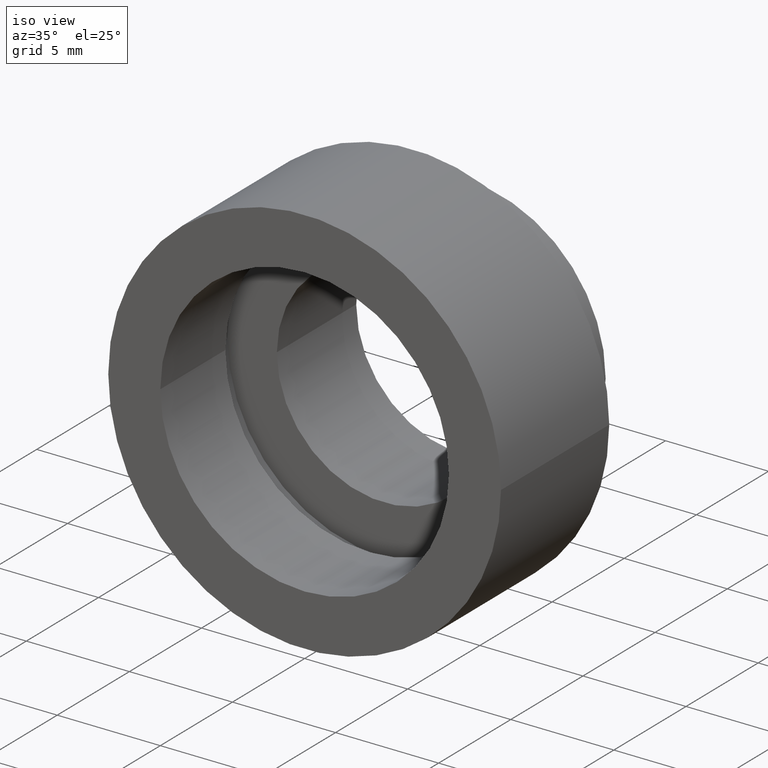
[diagram: clean part render]
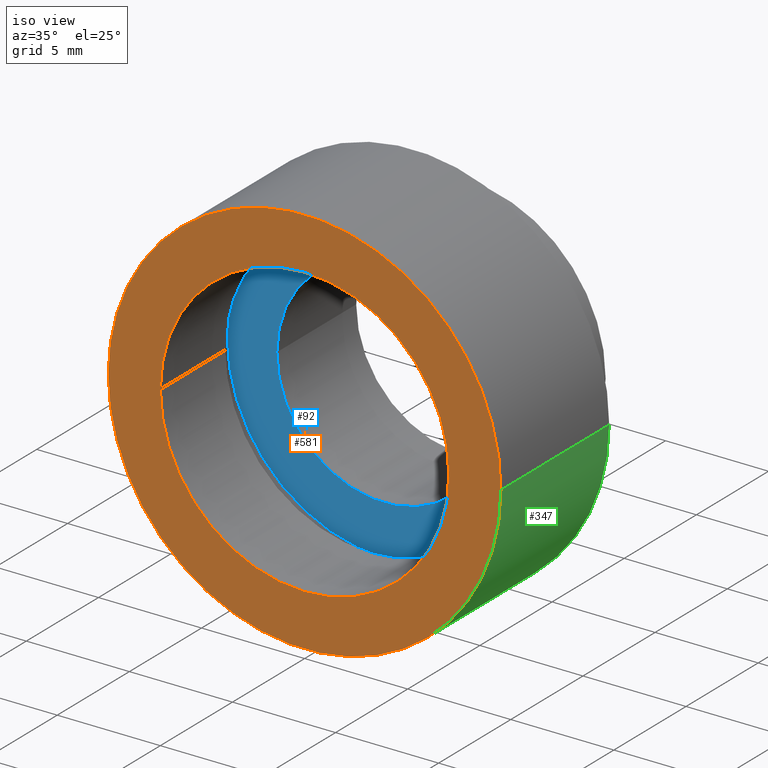
[diagram: same view with three faces highlighted in distinct colors, each labeled with its STEP entity id]
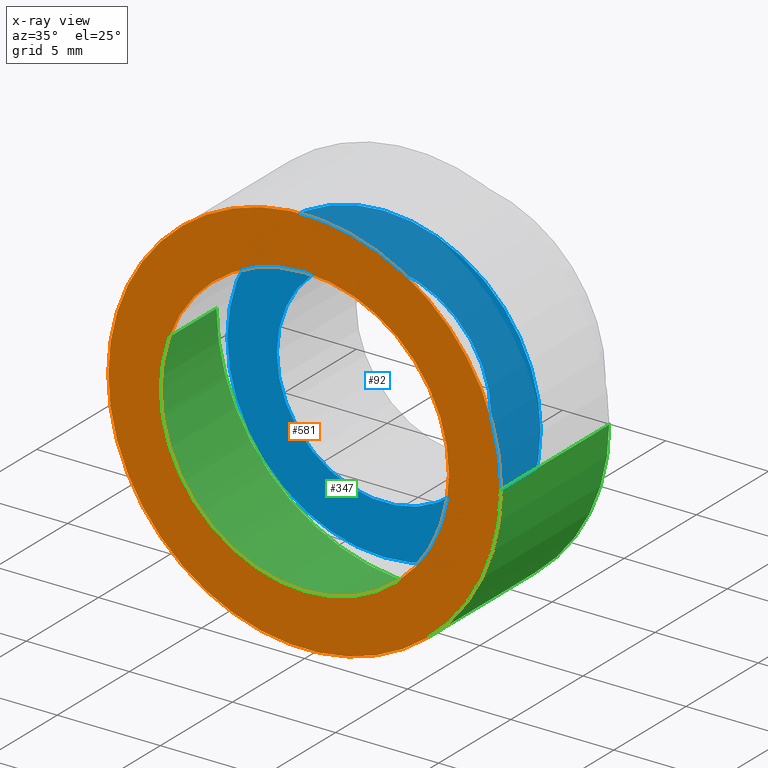
[diagram: x-ray of the same camera — body ghosted, the three highlighted faces saturated]
A machine part, iso view with three faces highlighted in distinct colors.
The next image is the same camera in x-ray (body ghosted, the three faces saturated) — at least one of them is partly hidden behind the body in this view.
Their STEP definitions:

[orange] entity #581 — the highlighted planar face has unit normal (-0, 1, 0).
#11 = DIRECTION ( 'NONE',  ( -1.224646799147351000E-016, 1.000000000000000000, -0.0000000000000000000 ) ) ;
#20 = CARTESIAN_POINT ( 'NONE',  ( 2.067940818438636100E-015, 0.0000000000000000000, 0.0000000000000000000 ) ) ;
#23 = AXIS2_PLACEMENT_3D ( 'NONE', #459, #379, #602 ) ;
#70 = ORIENTED_EDGE ( 'NONE', *, *, #440, .F. ) ;
#71 = AXIS2_PLACEMENT_3D ( 'NONE', #553, #501, #502 ) ;
#112 = AXIS2_PLACEMENT_3D ( 'NONE', #541, #11, #353 ) ;
#129 = ORIENTED_EDGE ( 'NONE', *, *, #467, .T. ) ;
#131 = FACE_OUTER_BOUND ( 'NONE', #554, .T. ) ;
#138 = VERTEX_POINT ( 'NONE', #579 ) ;
#165 = AXIS2_PLACEMENT_3D ( 'NONE', #20, #369, #168 ) ;
#168 = DIRECTION ( 'NONE',  ( -1.000000000000000000, -1.224646799147351000E-016, 0.0000000000000000000 ) ) ;
#248 = ORIENTED_EDGE ( 'NONE', *, *, #450, .F. ) ;
#287 = EDGE_CURVE ( 'NONE', #487, #498, #400, .T. ) ;
#301 = CIRCLE ( 'NONE', #71, 9.525000000000003900 ) ;
#317 = DIRECTION ( 'NONE',  ( -1.224646799147351000E-016, 1.000000000000000000, -0.0000000000000000000 ) ) ;
#353 = DIRECTION ( 'NONE',  ( -1.000000000000000000, -1.224646799147351000E-016, 0.0000000000000000000 ) ) ;
#369 = DIRECTION ( 'NONE',  ( -1.224646799147351000E-016, 1.000000000000000000, -0.0000000000000000000 ) ) ;
#379 = DIRECTION ( 'NONE',  ( -1.224646799147351000E-016, 1.000000000000000000, 0.0000000000000000000 ) ) ;
#400 = CIRCLE ( 'NONE', #112, 7.000000000000000000 ) ;
#440 = EDGE_CURVE ( 'NONE', #496, #138, #535, .T. ) ;
#446 = DIRECTION ( 'NONE',  ( -1.000000000000000000, -1.224646799147351200E-016, 0.0000000000000000000 ) ) ;
#448 = CARTESIAN_POINT ( 'NONE',  ( 7.000000000000001800, 8.572527594031457400E-016, 8.572527594031473200E-016 ) ) ;
#449 = CARTESIAN_POINT ( 'NONE',  ( 2.067940818438636100E-015, 0.0000000000000000000, 0.0000000000000000000 ) ) ;
#450 = EDGE_CURVE ( 'NONE', #138, #496, #301, .T. ) ;
#459 = CARTESIAN_POINT ( 'NONE',  ( 9.525000000000005700, -1.944126793646421300E-016, 0.0000000000000000000 ) ) ;
#465 = CARTESIAN_POINT ( 'NONE',  ( -9.525000000000002100, -1.166476076187852400E-015, 0.0000000000000000000 ) ) ;
#467 = EDGE_CURVE ( 'NONE', #498, #487, #589, .T. ) ;
#472 = ORIENTED_EDGE ( 'NONE', *, *, #287, .T. ) ;
#487 = VERTEX_POINT ( 'NONE', #448 ) ;
#495 = EDGE_LOOP ( 'NONE', ( #129, #472 ) ) ;
#496 = VERTEX_POINT ( 'NONE', #465 ) ;
#498 = VERTEX_POINT ( 'NONE', #560 ) ;
#501 = DIRECTION ( 'NONE',  ( -1.224646799147351000E-016, 1.000000000000000000, -0.0000000000000000000 ) ) ;
#502 = DIRECTION ( 'NONE',  ( -1.000000000000000000, -1.224646799147351200E-016, 0.0000000000000000000 ) ) ;
#535 = CIRCLE ( 'NONE', #575, 9.525000000000003900 ) ;
#541 = CARTESIAN_POINT ( 'NONE',  ( 2.067940818438636100E-015, 0.0000000000000000000, 0.0000000000000000000 ) ) ;
#553 = CARTESIAN_POINT ( 'NONE',  ( 2.067940818438636100E-015, 0.0000000000000000000, 0.0000000000000000000 ) ) ;
#554 = EDGE_LOOP ( 'NONE', ( #70, #248 ) ) ;
#560 = CARTESIAN_POINT ( 'NONE',  ( -6.999999999999998200, -8.572527594031457400E-016, 0.0000000000000000000 ) ) ;
#566 = FACE_BOUND ( 'NONE', #495, .T. ) ;
#575 = AXIS2_PLACEMENT_3D ( 'NONE', #449, #317, #446 ) ;
#579 = CARTESIAN_POINT ( 'NONE',  ( 9.525000000000005700, 1.166476076187852400E-015, 1.166476076187854400E-015 ) ) ;
#581 = ADVANCED_FACE ( 'NONE', ( #131, #566 ), #605, .F. ) ;
#589 = CIRCLE ( 'NONE', #165, 7.000000000000000000 ) ;
#602 = DIRECTION ( 'NONE',  ( -1.000000000000000000, -1.224646799147351000E-016, 0.0000000000000000000 ) ) ;
#605 = PLANE ( 'NONE',  #23 ) ;

[blue] entity #92 — the highlighted planar face has unit normal (-0, 1, 0).
#30 = ORIENTED_EDGE ( 'NONE', *, *, #220, .T. ) ;
#39 = DIRECTION ( 'NONE',  ( -1.000000000000000000, -1.224646799147351000E-016, 0.0000000000000000000 ) ) ;
#66 = CARTESIAN_POINT ( 'NONE',  ( 5.200000000000001100, 5.500000000000000900, 6.368163355566236400E-016 ) ) ;
#79 = EDGE_CURVE ( 'NONE', #443, #265, #607, .T. ) ;
#86 = DIRECTION ( 'NONE',  ( -1.224646799147351000E-016, 1.000000000000000000, 0.0000000000000000000 ) ) ;
#90 = CARTESIAN_POINT ( 'NONE',  ( 5.200000000000001100, 5.500000000000000000, 0.0000000000000000000 ) ) ;
#92 = ADVANCED_FACE ( 'NONE', ( #160, #193 ), #196, .F. ) ;
#94 = VERTEX_POINT ( 'NONE', #520 ) ;
#141 = DIRECTION ( 'NONE',  ( -1.000000000000000000, -1.668003342285391300E-016, 0.0000000000000000000 ) ) ;
#147 = CARTESIAN_POINT ( 'NONE',  ( 1.394385078907593200E-015, 5.499999999999996400, 0.0000000000000000000 ) ) ;
#160 = FACE_OUTER_BOUND ( 'NONE', #203, .T. ) ;
#193 = FACE_BOUND ( 'NONE', #210, .T. ) ;
#195 = ORIENTED_EDGE ( 'NONE', *, *, #307, .F. ) ;
#196 = PLANE ( 'NONE',  #291 ) ;
#198 = CARTESIAN_POINT ( 'NONE',  ( -5.199999999999998400, 5.499999999999999100, 0.0000000000000000000 ) ) ;
#203 = EDGE_LOOP ( 'NONE', ( #587, #195 ) ) ;
#210 = EDGE_LOOP ( 'NONE', ( #30, #370 ) ) ;
#214 = DIRECTION ( 'NONE',  ( -1.000000000000000000, -1.141265444721583800E-016, 0.0000000000000000000 ) ) ;
#220 = EDGE_CURVE ( 'NONE', #265, #443, #319, .T. ) ;
#237 = EDGE_CURVE ( 'NONE', #620, #94, #611, .T. ) ;
#247 = CARTESIAN_POINT ( 'NONE',  ( 1.394385078907592800E-015, 5.500000000000000000, 0.0000000000000000000 ) ) ;
#250 = AXIS2_PLACEMENT_3D ( 'NONE', #402, #488, #214 ) ;
#265 = VERTEX_POINT ( 'NONE', #198 ) ;
#275 = CARTESIAN_POINT ( 'NONE',  ( -7.599999999999997900, 5.499999999999995600, 0.0000000000000000000 ) ) ;
#283 = AXIS2_PLACEMENT_3D ( 'NONE', #147, #621, #392 ) ;
#286 = CARTESIAN_POINT ( 'NONE',  ( 1.394385078907592800E-015, 5.500000000000000000, 0.0000000000000000000 ) ) ;
#291 = AXIS2_PLACEMENT_3D ( 'NONE', #90, #86, #39 ) ;
#296 = DIRECTION ( 'NONE',  ( -1.000000000000000000, -1.668003342285391300E-016, 0.0000000000000000000 ) ) ;
#307 = EDGE_CURVE ( 'NONE', #94, #620, #406, .T. ) ;
#319 = CIRCLE ( 'NONE', #597, 5.200000000000000200 ) ;
#370 = ORIENTED_EDGE ( 'NONE', *, *, #79, .T. ) ;
#390 = DIRECTION ( 'NONE',  ( -1.224646799147351000E-016, 1.000000000000000000, -0.0000000000000000000 ) ) ;
#392 = DIRECTION ( 'NONE',  ( -1.000000000000000000, -1.141265444721583800E-016, 0.0000000000000000000 ) ) ;
#402 = CARTESIAN_POINT ( 'NONE',  ( 1.394385078907593200E-015, 5.499999999999996400, 0.0000000000000000000 ) ) ;
#406 = CIRCLE ( 'NONE', #250, 7.599999999999999600 ) ;
#443 = VERTEX_POINT ( 'NONE', #66 ) ;
#488 = DIRECTION ( 'NONE',  ( -1.224646799147351000E-016, 1.000000000000000000, -0.0000000000000000000 ) ) ;
#520 = CARTESIAN_POINT ( 'NONE',  ( 7.600000000000001400, 5.499999999999997300, 9.307315673519885500E-016 ) ) ;
#521 = AXIS2_PLACEMENT_3D ( 'NONE', #286, #522, #141 ) ;
#522 = DIRECTION ( 'NONE',  ( -1.224646799147351000E-016, 1.000000000000000000, -0.0000000000000000000 ) ) ;
#587 = ORIENTED_EDGE ( 'NONE', *, *, #237, .F. ) ;
#597 = AXIS2_PLACEMENT_3D ( 'NONE', #247, #390, #296 ) ;
#607 = CIRCLE ( 'NONE', #521, 5.200000000000000200 ) ;
#611 = CIRCLE ( 'NONE', #283, 7.599999999999999600 ) ;
#620 = VERTEX_POINT ( 'NONE', #275 ) ;
#621 = DIRECTION ( 'NONE',  ( -1.224646799147351000E-016, 1.000000000000000000, -0.0000000000000000000 ) ) ;

[green] entity #347 — the highlighted cylindrical surface (partial cylindrical patch) has radius 9.525 mm, axis along (-0, 1, -0).
#8 = AXIS2_PLACEMENT_3D ( 'NONE', #320, #469, #323 ) ;
#16 = EDGE_LOOP ( 'NONE', ( #217, #333, #609, #78 ) ) ;
#62 = DIRECTION ( 'NONE',  ( -1.000000000000000000, 0.0000000000000000000, 0.0000000000000000000 ) ) ;
#71 = AXIS2_PLACEMENT_3D ( 'NONE', #553, #501, #502 ) ;
#78 = ORIENTED_EDGE ( 'NONE', *, *, #590, .F. ) ;
#107 = LINE ( 'NONE', #246, #302 ) ;
#138 = VERTEX_POINT ( 'NONE', #579 ) ;
#162 = DIRECTION ( 'NONE',  ( -1.224646799147351000E-016, 1.000000000000000000, -0.0000000000000000000 ) ) ;
#166 = CARTESIAN_POINT ( 'NONE',  ( -9.524999999999998600, 7.499999999999997300, 0.0000000000000000000 ) ) ;
#172 = EDGE_CURVE ( 'NONE', #138, #478, #107, .T. ) ;
#178 = CIRCLE ( 'NONE', #8, 9.525000000000000400 ) ;
#181 = LINE ( 'NONE', #386, #542 ) ;
#217 = ORIENTED_EDGE ( 'NONE', *, *, #172, .F. ) ;
#229 = EDGE_CURVE ( 'NONE', #496, #308, #181, .T. ) ;
#246 = CARTESIAN_POINT ( 'NONE',  ( 9.525000000000002100, 16.88601823708207700, 1.166476076187854200E-015 ) ) ;
#280 = CYLINDRICAL_SURFACE ( 'NONE', #441, 9.525000000000002100 ) ;
#301 = CIRCLE ( 'NONE', #71, 9.525000000000003900 ) ;
#302 = VECTOR ( 'NONE', #430, 1000.000000000000000 ) ;
#308 = VERTEX_POINT ( 'NONE', #166 ) ;
#320 = CARTESIAN_POINT ( 'NONE',  ( 1.149455719078122700E-015, 7.499999999999998200, 0.0000000000000000000 ) ) ;
#323 = DIRECTION ( 'NONE',  ( -1.000000000000000000, -9.106159978880877400E-017, 0.0000000000000000000 ) ) ;
#333 = ORIENTED_EDGE ( 'NONE', *, *, #450, .T. ) ;
#342 = DIRECTION ( 'NONE',  ( -1.224646799147351000E-016, 1.000000000000000000, -0.0000000000000000000 ) ) ;
#347 = ADVANCED_FACE ( 'NONE', ( #610 ), #280, .T. ) ;
#386 = CARTESIAN_POINT ( 'NONE',  ( -9.525000000000002100, 16.88601823708207700, 0.0000000000000000000 ) ) ;
#430 = DIRECTION ( 'NONE',  ( -1.224646799147351000E-016, 1.000000000000000000, -0.0000000000000000000 ) ) ;
#441 = AXIS2_PLACEMENT_3D ( 'NONE', #544, #162, #62 ) ;
#450 = EDGE_CURVE ( 'NONE', #138, #496, #301, .T. ) ;
#465 = CARTESIAN_POINT ( 'NONE',  ( -9.525000000000002100, -1.166476076187852400E-015, 0.0000000000000000000 ) ) ;
#469 = DIRECTION ( 'NONE',  ( -1.224646799147351000E-016, 1.000000000000000000, -0.0000000000000000000 ) ) ;
#478 = VERTEX_POINT ( 'NONE', #593 ) ;
#496 = VERTEX_POINT ( 'NONE', #465 ) ;
#501 = DIRECTION ( 'NONE',  ( -1.224646799147351000E-016, 1.000000000000000000, -0.0000000000000000000 ) ) ;
#502 = DIRECTION ( 'NONE',  ( -1.000000000000000000, -1.224646799147351200E-016, 0.0000000000000000000 ) ) ;
#542 = VECTOR ( 'NONE', #342, 1000.000000000000000 ) ;
#544 = CARTESIAN_POINT ( 'NONE',  ( 0.0000000000000000000, 16.88601823708207700, 0.0000000000000000000 ) ) ;
#553 = CARTESIAN_POINT ( 'NONE',  ( 2.067940818438636100E-015, 0.0000000000000000000, 0.0000000000000000000 ) ) ;
#579 = CARTESIAN_POINT ( 'NONE',  ( 9.525000000000005700, 1.166476076187852400E-015, 1.166476076187854400E-015 ) ) ;
#590 = EDGE_CURVE ( 'NONE', #478, #308, #178, .T. ) ;
#593 = CARTESIAN_POINT ( 'NONE',  ( 9.525000000000002100, 7.499999999999999100, 1.166476076187854200E-015 ) ) ;
#609 = ORIENTED_EDGE ( 'NONE', *, *, #229, .T. ) ;
#610 = FACE_OUTER_BOUND ( 'NONE', #16, .T. ) ;